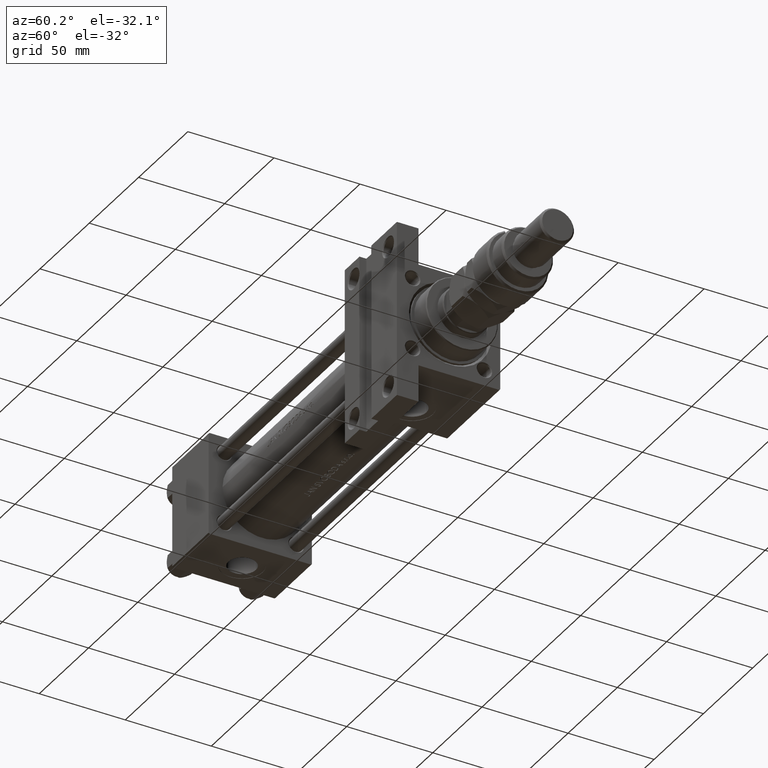
[diagram: clean part render]
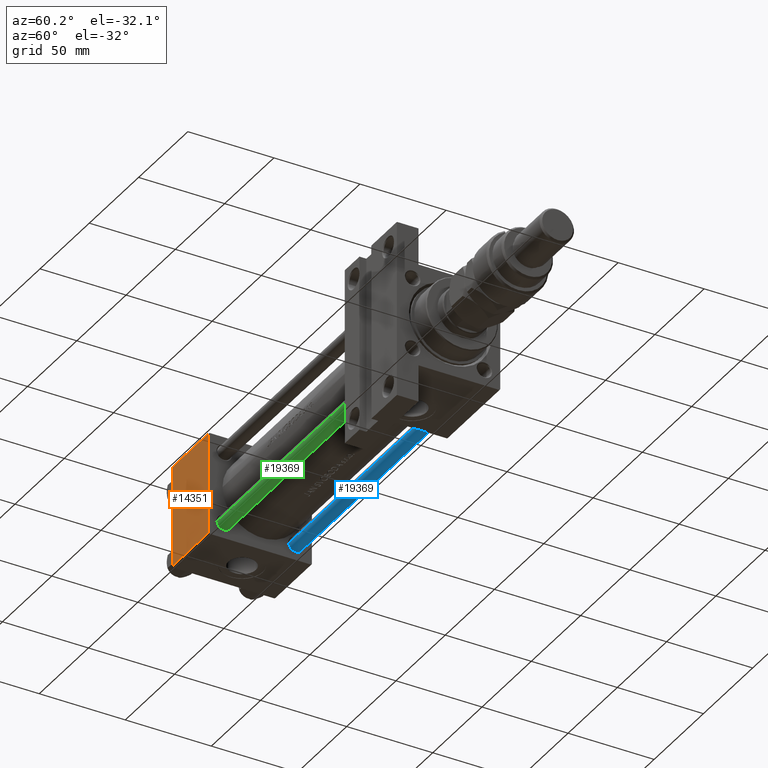
[diagram: same view with three faces highlighted in distinct colors, each labeled with its STEP entity id]
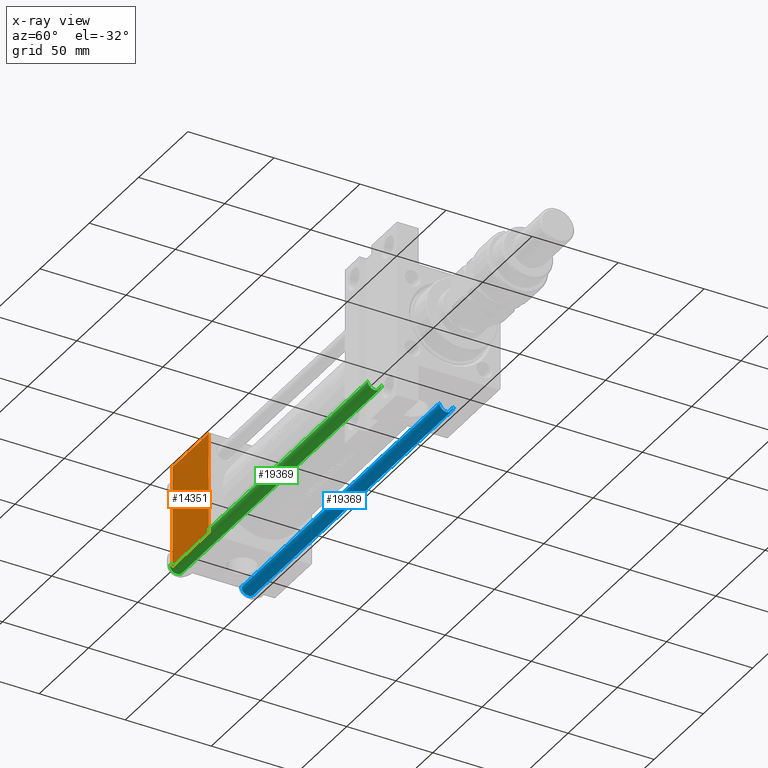
[diagram: x-ray of the same camera — body ghosted, the three highlighted faces saturated]
A machine part, auxiliary view with three faces highlighted in distinct colors.
The next image is the same camera in x-ray (body ghosted, the three faces saturated) — at least one of them is partly hidden behind the body in this view.
Their STEP definitions:

[orange] entity #14351 — the highlighted planar face has unit normal (0, -1, -0).
#473 = CARTESIAN_POINT ( 'NONE',  ( 0.000000000000000000, 29.49999999999997868, -30.00000000000000000 ) ) ;
#1931 = LINE ( 'NONE', #2466, #26860 ) ;
#2466 = CARTESIAN_POINT ( 'NONE',  ( 0.000000000000000000, -29.50000000000001066, -30.00000000000000711 ) ) ;
#4538 = ORIENTED_EDGE ( 'NONE', *, *, #5196, .T. ) ;
#5196 = EDGE_CURVE ( 'NONE', #37065, #41672, #1931, .T. ) ;
#5739 = FACE_OUTER_BOUND ( 'NONE', #5867, .T. ) ;
#5867 = EDGE_LOOP ( 'NONE', ( #51205, #49208, #26281, #4538 ) ) ;
#6043 = VECTOR ( 'NONE', #10968, 1000.000000000000000 ) ;
#10968 = DIRECTION ( 'NONE',  ( 1.000000000000000000, 0.000000000000000000, 0.000000000000000000 ) ) ;
#13426 = CARTESIAN_POINT ( 'NONE',  ( 0.000000000000000000, -29.50000000000000000, -30.00000000000000711 ) ) ;
#14351 = ADVANCED_FACE ( 'NONE', ( #5739 ), #26090, .T. ) ;
#18447 = DIRECTION ( 'NONE',  ( -1.000000000000000000, 0.000000000000000000, 0.000000000000000000 ) ) ;
#19518 = VERTEX_POINT ( 'NONE', #26026 ) ;
#19872 = VERTEX_POINT ( 'NONE', #473 ) ;
#21560 = CARTESIAN_POINT ( 'NONE',  ( 37.00000000000000000, 29.49999999999997868, -30.00000000000000000 ) ) ;
#22250 = DIRECTION ( 'NONE',  ( 0.000000000000000000, 1.000000000000000000, 1.156482317317871725E-16 ) ) ;
#22527 = DIRECTION ( 'NONE',  ( 0.000000000000000000, 1.156482317317871725E-16, -1.000000000000000000 ) ) ;
#23292 = CARTESIAN_POINT ( 'NONE',  ( 37.00000000000000000, -29.50000000000000000, -30.00000000000000711 ) ) ;
#25409 = EDGE_CURVE ( 'NONE', #19518, #37065, #47242, .T. ) ;
#26026 = CARTESIAN_POINT ( 'NONE',  ( 37.00000000000000000, 29.49999999999997868, -30.00000000000000000 ) ) ;
#26090 = PLANE ( 'NONE',  #53105 ) ;
#26281 = ORIENTED_EDGE ( 'NONE', *, *, #25409, .T. ) ;
#26637 = CARTESIAN_POINT ( 'NONE',  ( 37.00000000000000000, 29.99999999999999289, -30.00000000000000000 ) ) ;
#26860 = VECTOR ( 'NONE', #18447, 1000.000000000000000 ) ;
#30989 = DIRECTION ( 'NONE',  ( 0.000000000000000000, -1.000000000000000000, -1.156482317317871725E-16 ) ) ;
#33728 = DIRECTION ( 'NONE',  ( 0.000000000000000000, -1.000000000000000000, -1.156482317317871725E-16 ) ) ;
#33799 = LINE ( 'NONE', #21560, #6043 ) ;
#34523 = LINE ( 'NONE', #45923, #48959 ) ;
#37065 = VERTEX_POINT ( 'NONE', #23292 ) ;
#37680 = EDGE_CURVE ( 'NONE', #19872, #41672, #34523, .T. ) ;
#38028 = VECTOR ( 'NONE', #30989, 1000.000000000000000 ) ;
#41672 = VERTEX_POINT ( 'NONE', #13426 ) ;
#45923 = CARTESIAN_POINT ( 'NONE',  ( 0.000000000000000000, 29.99999999999999289, -30.00000000000000000 ) ) ;
#47242 = LINE ( 'NONE', #26637, #38028 ) ;
#47762 = CARTESIAN_POINT ( 'NONE',  ( 37.00000000000000000, 29.99999999999999289, -30.00000000000000000 ) ) ;
#48959 = VECTOR ( 'NONE', #33728, 1000.000000000000000 ) ;
#49208 = ORIENTED_EDGE ( 'NONE', *, *, #52245, .T. ) ;
#51205 = ORIENTED_EDGE ( 'NONE', *, *, #37680, .F. ) ;
#52245 = EDGE_CURVE ( 'NONE', #19872, #19518, #33799, .T. ) ;
#53105 = AXIS2_PLACEMENT_3D ( 'NONE', #47762, #22527, #22250 ) ;

[blue] entity #19369 — the highlighted cylindrical surface (edge-blend (fillet) strip) has radius 4 mm, axis along (-1, -0, 0).
#271 = DIRECTION ( 'NONE',  ( -0.000000000000000000, -0.000000000000000000, -1.000000000000000000 ) ) ;
#3564 = FACE_OUTER_BOUND ( 'NONE', #49944, .T. ) ;
#3688 = DIRECTION ( 'NONE',  ( -0.000000000000000000, -0.000000000000000000, 1.000000000000000000 ) ) ;
#5733 = EDGE_CURVE ( 'NONE', #51175, #32562, #18214, .T. ) ;
#6460 = CARTESIAN_POINT ( 'NONE',  ( 4.000000000000000000, 4.898587196589412829E-16, 201.5000000000000000 ) ) ;
#8238 = CARTESIAN_POINT ( 'NONE',  ( -4.000000000000000000, 0.000000000000000000, 201.5000000000000000 ) ) ;
#9063 = CARTESIAN_POINT ( 'NONE',  ( 0.000000000000000000, 0.000000000000000000, 201.5000000000000000 ) ) ;
#9753 = ORIENTED_EDGE ( 'NONE', *, *, #50071, .T. ) ;
#11168 = CIRCLE ( 'NONE', #36302, 4.000000000000000000 ) ;
#11806 = CARTESIAN_POINT ( 'NONE',  ( 0.000000000000000000, 0.000000000000000000, 0.5000000000000004441 ) ) ;
#12696 = EDGE_CURVE ( 'NONE', #39482, #32562, #42551, .T. ) ;
#16789 = DIRECTION ( 'NONE',  ( -1.000000000000000000, 0.000000000000000000, 0.000000000000000000 ) ) ;
#18214 = CIRCLE ( 'NONE', #35544, 4.000000000000000000 ) ;
#19327 = VECTOR ( 'NONE', #50933, 1000.000000000000000 ) ;
#19369 = ADVANCED_FACE ( 'NONE', ( #3564 ), #20066, .T. ) ;
#19473 = AXIS2_PLACEMENT_3D ( 'NONE', #41747, #271, #16789 ) ;
#19888 = ORIENTED_EDGE ( 'NONE', *, *, #33203, .T. ) ;
#20066 = CYLINDRICAL_SURFACE ( 'NONE', #19473, 4.000000000000000000 ) ;
#20868 = CARTESIAN_POINT ( 'NONE',  ( -4.000000000000000000, 0.000000000000000000, 0.5000000000000004441 ) ) ;
#21304 = ORIENTED_EDGE ( 'NONE', *, *, #5733, .T. ) ;
#21652 = CARTESIAN_POINT ( 'NONE',  ( 4.000000000000000000, 4.898587196589412829E-16, 202.0000000000000000 ) ) ;
#24071 = VERTEX_POINT ( 'NONE', #8238 ) ;
#25589 = DIRECTION ( 'NONE',  ( 0.000000000000000000, 0.000000000000000000, -1.000000000000000000 ) ) ;
#27050 = CARTESIAN_POINT ( 'NONE',  ( 4.000000000000000000, 4.898587196589412829E-16, 0.5000000000000004441 ) ) ;
#31282 = DIRECTION ( 'NONE',  ( 1.000000000000000000, 0.000000000000000000, 0.000000000000000000 ) ) ;
#32562 = VERTEX_POINT ( 'NONE', #27050 ) ;
#33203 = EDGE_CURVE ( 'NONE', #39482, #24071, #11168, .T. ) ;
#35544 = AXIS2_PLACEMENT_3D ( 'NONE', #11806, #3688, #49213 ) ;
#36302 = AXIS2_PLACEMENT_3D ( 'NONE', #9063, #25589, #31282 ) ;
#37092 = DIRECTION ( 'NONE',  ( -0.000000000000000000, -0.000000000000000000, -1.000000000000000000 ) ) ;
#39482 = VERTEX_POINT ( 'NONE', #6460 ) ;
#41142 = CARTESIAN_POINT ( 'NONE',  ( -4.000000000000000000, 0.000000000000000000, 202.0000000000000000 ) ) ;
#41747 = CARTESIAN_POINT ( 'NONE',  ( 0.000000000000000000, 0.000000000000000000, 202.0000000000000000 ) ) ;
#42551 = LINE ( 'NONE', #21652, #19327 ) ;
#45227 = LINE ( 'NONE', #41142, #50973 ) ;
#46185 = ORIENTED_EDGE ( 'NONE', *, *, #12696, .F. ) ;
#49213 = DIRECTION ( 'NONE',  ( 1.000000000000000000, 0.000000000000000000, 0.000000000000000000 ) ) ;
#49944 = EDGE_LOOP ( 'NONE', ( #46185, #19888, #9753, #21304 ) ) ;
#50071 = EDGE_CURVE ( 'NONE', #24071, #51175, #45227, .T. ) ;
#50933 = DIRECTION ( 'NONE',  ( -0.000000000000000000, -0.000000000000000000, -1.000000000000000000 ) ) ;
#50973 = VECTOR ( 'NONE', #37092, 1000.000000000000000 ) ;
#51175 = VERTEX_POINT ( 'NONE', #20868 ) ;

[green] entity #19369 — the highlighted cylindrical surface (edge-blend (fillet) strip) has radius 4 mm, axis along (1, 0, 0).
#271 = DIRECTION ( 'NONE',  ( -0.000000000000000000, -0.000000000000000000, -1.000000000000000000 ) ) ;
#3564 = FACE_OUTER_BOUND ( 'NONE', #49944, .T. ) ;
#3688 = DIRECTION ( 'NONE',  ( -0.000000000000000000, -0.000000000000000000, 1.000000000000000000 ) ) ;
#5733 = EDGE_CURVE ( 'NONE', #51175, #32562, #18214, .T. ) ;
#6460 = CARTESIAN_POINT ( 'NONE',  ( 4.000000000000000000, 4.898587196589412829E-16, 201.5000000000000000 ) ) ;
#8238 = CARTESIAN_POINT ( 'NONE',  ( -4.000000000000000000, 0.000000000000000000, 201.5000000000000000 ) ) ;
#9063 = CARTESIAN_POINT ( 'NONE',  ( 0.000000000000000000, 0.000000000000000000, 201.5000000000000000 ) ) ;
#9753 = ORIENTED_EDGE ( 'NONE', *, *, #50071, .T. ) ;
#11168 = CIRCLE ( 'NONE', #36302, 4.000000000000000000 ) ;
#11806 = CARTESIAN_POINT ( 'NONE',  ( 0.000000000000000000, 0.000000000000000000, 0.5000000000000004441 ) ) ;
#12696 = EDGE_CURVE ( 'NONE', #39482, #32562, #42551, .T. ) ;
#16789 = DIRECTION ( 'NONE',  ( -1.000000000000000000, 0.000000000000000000, 0.000000000000000000 ) ) ;
#18214 = CIRCLE ( 'NONE', #35544, 4.000000000000000000 ) ;
#19327 = VECTOR ( 'NONE', #50933, 1000.000000000000000 ) ;
#19369 = ADVANCED_FACE ( 'NONE', ( #3564 ), #20066, .T. ) ;
#19473 = AXIS2_PLACEMENT_3D ( 'NONE', #41747, #271, #16789 ) ;
#19888 = ORIENTED_EDGE ( 'NONE', *, *, #33203, .T. ) ;
#20066 = CYLINDRICAL_SURFACE ( 'NONE', #19473, 4.000000000000000000 ) ;
#20868 = CARTESIAN_POINT ( 'NONE',  ( -4.000000000000000000, 0.000000000000000000, 0.5000000000000004441 ) ) ;
#21304 = ORIENTED_EDGE ( 'NONE', *, *, #5733, .T. ) ;
#21652 = CARTESIAN_POINT ( 'NONE',  ( 4.000000000000000000, 4.898587196589412829E-16, 202.0000000000000000 ) ) ;
#24071 = VERTEX_POINT ( 'NONE', #8238 ) ;
#25589 = DIRECTION ( 'NONE',  ( 0.000000000000000000, 0.000000000000000000, -1.000000000000000000 ) ) ;
#27050 = CARTESIAN_POINT ( 'NONE',  ( 4.000000000000000000, 4.898587196589412829E-16, 0.5000000000000004441 ) ) ;
#31282 = DIRECTION ( 'NONE',  ( 1.000000000000000000, 0.000000000000000000, 0.000000000000000000 ) ) ;
#32562 = VERTEX_POINT ( 'NONE', #27050 ) ;
#33203 = EDGE_CURVE ( 'NONE', #39482, #24071, #11168, .T. ) ;
#35544 = AXIS2_PLACEMENT_3D ( 'NONE', #11806, #3688, #49213 ) ;
#36302 = AXIS2_PLACEMENT_3D ( 'NONE', #9063, #25589, #31282 ) ;
#37092 = DIRECTION ( 'NONE',  ( -0.000000000000000000, -0.000000000000000000, -1.000000000000000000 ) ) ;
#39482 = VERTEX_POINT ( 'NONE', #6460 ) ;
#41142 = CARTESIAN_POINT ( 'NONE',  ( -4.000000000000000000, 0.000000000000000000, 202.0000000000000000 ) ) ;
#41747 = CARTESIAN_POINT ( 'NONE',  ( 0.000000000000000000, 0.000000000000000000, 202.0000000000000000 ) ) ;
#42551 = LINE ( 'NONE', #21652, #19327 ) ;
#45227 = LINE ( 'NONE', #41142, #50973 ) ;
#46185 = ORIENTED_EDGE ( 'NONE', *, *, #12696, .F. ) ;
#49213 = DIRECTION ( 'NONE',  ( 1.000000000000000000, 0.000000000000000000, 0.000000000000000000 ) ) ;
#49944 = EDGE_LOOP ( 'NONE', ( #46185, #19888, #9753, #21304 ) ) ;
#50071 = EDGE_CURVE ( 'NONE', #24071, #51175, #45227, .T. ) ;
#50933 = DIRECTION ( 'NONE',  ( -0.000000000000000000, -0.000000000000000000, -1.000000000000000000 ) ) ;
#50973 = VECTOR ( 'NONE', #37092, 1000.000000000000000 ) ;
#51175 = VERTEX_POINT ( 'NONE', #20868 ) ;